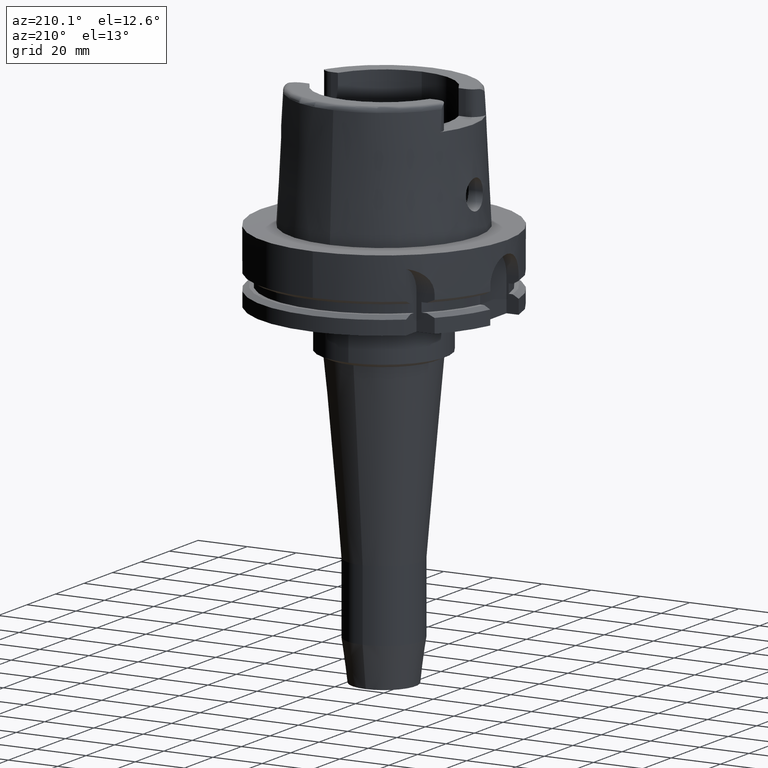
[diagram: clean part render]
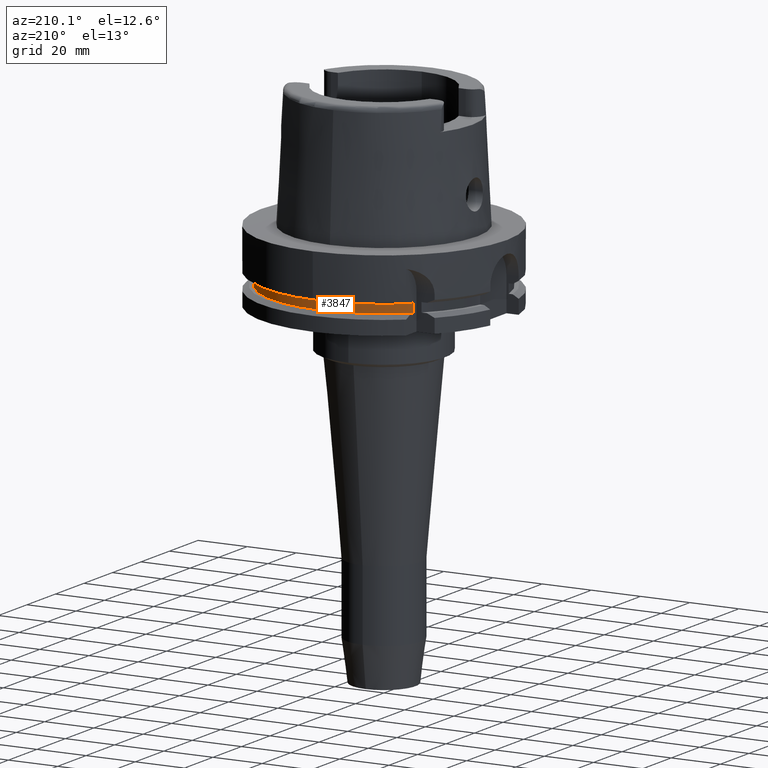
[diagram: same view with one face highlighted and labeled with its STEP entity id]
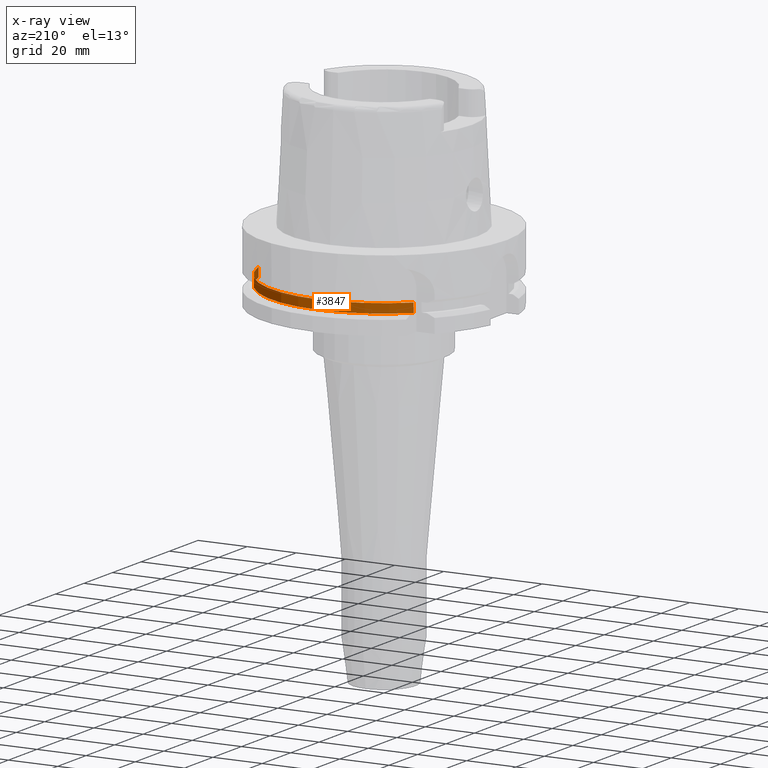
[diagram: x-ray of the same camera — body ghosted, the highlighted face saturated]
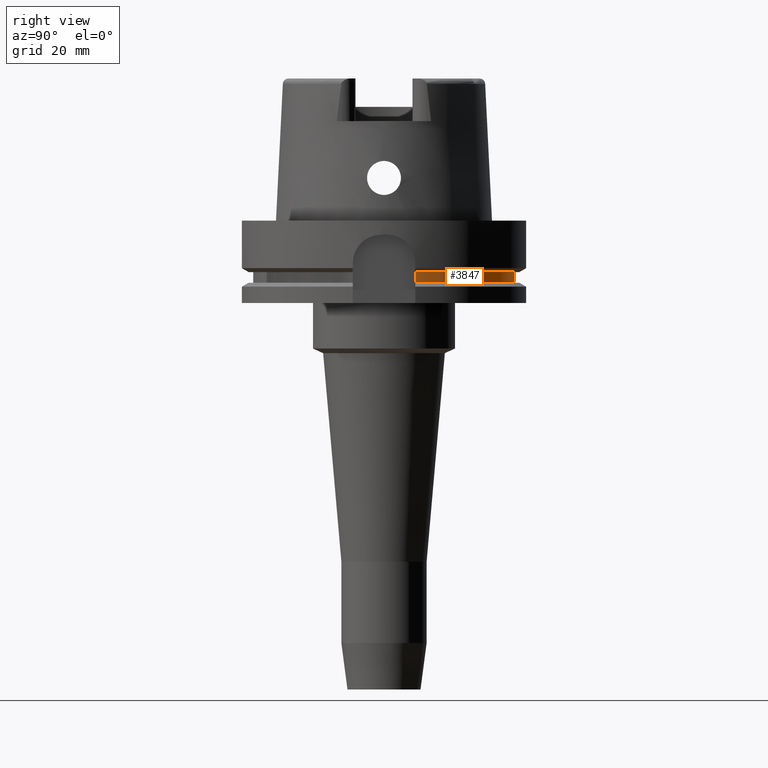
[diagram: same view with one face highlighted and labeled with its STEP entity id]
A machine part, auxiliary view. The second image highlights one B-rep face of the part: STEP entity #3847.
The next image is the same camera in x-ray: the body ghosted, the highlighted face saturated — about 2% of this face is hidden behind the body in this view.
A second angle (right view) of the same face is appended — the face is thin or edge-on in the first view.
In plain terms, the highlighted cylindrical surface (partial cylindrical patch) has radius 46 mm, axis along (0, 0, 1).
Its self-contained STEP definition (entity closure, byte-faithful):
#1610=CARTESIAN_POINT('',(0.E0,0.E0,-1.8125E1));
#1611=DIRECTION('',(0.E0,0.E0,-1.E0));
#1612=DIRECTION('',(-6.847826086957E-1,7.287474039940E-1,0.E0));
#1613=AXIS2_PLACEMENT_3D('',#1610,#1611,#1612);
#1618=CARTESIAN_POINT('',(0.E0,0.E0,-1.8125E1));
#1619=DIRECTION('',(0.E0,0.E0,-1.E0));
#1620=DIRECTION('',(0.E0,1.E0,0.E0));
#1621=AXIS2_PLACEMENT_3D('',#1618,#1619,#1620);
#1649=DIRECTION('',(0.E0,0.E0,-1.E0));
#1650=VECTOR('',#1649,3.75E0);
#1651=CARTESIAN_POINT('',(-3.15E1,3.352238058372E1,-1.8125E1));
#1652=LINE('',#1651,#1650);
#1656=DIRECTION('',(0.E0,0.E0,1.E0));
#1657=VECTOR('',#1656,3.75E0);
#1658=CARTESIAN_POINT('',(4.466542286825E1,1.1E1,-2.1875E1));
#1659=LINE('',#1658,#1657);
#1686=CARTESIAN_POINT('',(0.E0,0.E0,-2.1875E1));
#1687=DIRECTION('',(0.E0,0.E0,1.E0));
#1688=DIRECTION('',(9.709874536577E-1,2.391304347826E-1,0.E0));
#1689=AXIS2_PLACEMENT_3D('',#1686,#1687,#1688);
#1694=CARTESIAN_POINT('',(0.E0,0.E0,-2.1875E1));
#1695=DIRECTION('',(0.E0,0.E0,1.E0));
#1696=DIRECTION('',(0.E0,1.E0,0.E0));
#1697=AXIS2_PLACEMENT_3D('',#1694,#1695,#1696);
#2458=CARTESIAN_POINT('',(-3.15E1,3.352238058372E1,-2.1875E1));
#2459=VERTEX_POINT('',#2458);
#2460=CARTESIAN_POINT('',(-3.15E1,3.352238058372E1,-1.8125E1));
#2461=VERTEX_POINT('',#2460);
#2522=CARTESIAN_POINT('',(4.466542286825E1,1.1E1,-2.1875E1));
#2523=VERTEX_POINT('',#2522);
#2524=CARTESIAN_POINT('',(6.348635329208E-14,4.6E1,-2.1875E1));
#2525=VERTEX_POINT('',#2524);
#2532=CARTESIAN_POINT('',(4.466542286825E1,1.1E1,-1.8125E1));
#2533=VERTEX_POINT('',#2532);
#2534=CARTESIAN_POINT('',(0.E0,4.6E1,-1.8125E1));
#2535=VERTEX_POINT('',#2534);
#3832=CARTESIAN_POINT('',(0.E0,0.E0,-1.7575E2));
#3833=DIRECTION('',(0.E0,0.E0,1.E0));
#3834=DIRECTION('',(0.E0,1.E0,0.E0));
#3835=AXIS2_PLACEMENT_3D('',#3832,#3833,#3834);
#3836=CYLINDRICAL_SURFACE('',#3835,4.6E1);
#3837=ORIENTED_EDGE('',*,*,#3534,.T.);
#3839=ORIENTED_EDGE('',*,*,#3838,.F.);
#3841=ORIENTED_EDGE('',*,*,#3840,.F.);
#3842=ORIENTED_EDGE('',*,*,#3582,.T.);
#3843=ORIENTED_EDGE('',*,*,#3824,.F.);
#3844=ORIENTED_EDGE('',*,*,#3822,.F.);
#3845=EDGE_LOOP('',(#3837,#3839,#3841,#3842,#3843,#3844));
#3846=FACE_OUTER_BOUND('',#3845,.F.);
#1614=CIRCLE('',#1613,4.6E1);
#1622=CIRCLE('',#1621,4.6E1);
#1690=CIRCLE('',#1689,4.6E1);
#1698=CIRCLE('',#1697,4.6E1);
#3534=EDGE_CURVE('',#2461,#2459,#1652,.T.);
#3582=EDGE_CURVE('',#2523,#2533,#1659,.T.);
#3822=EDGE_CURVE('',#2461,#2535,#1614,.T.);
#3824=EDGE_CURVE('',#2535,#2533,#1622,.T.);
#3838=EDGE_CURVE('',#2525,#2459,#1698,.T.);
#3840=EDGE_CURVE('',#2523,#2525,#1690,.T.);
#3847=ADVANCED_FACE('',(#3846),#3836,.T.);